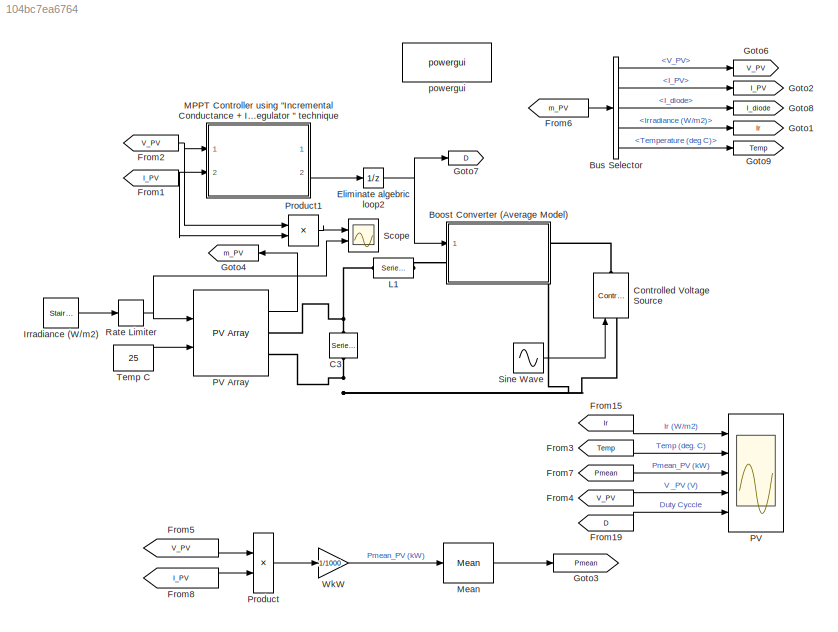
MODEL slx_104bc7ea6764
KIND model
CONFIG AbsTol = auto
CONFIG EnableMultiTasking = off
CONFIG FixedStep = auto
CONFIG MaxStep = 1e-4
CONFIG MinStep = auto
CONFIG PreLoadFcn = Ts_Power=50e-6;\nTs_Control=100e-6;\n\n\n
CONFIG RelTol = 1e-3
CONFIG SampleTimeConstraint = Unconstrained
CONFIG SolverName = ode23tb
CONFIG StartTime = 0.0
CONFIG StopTime = 4
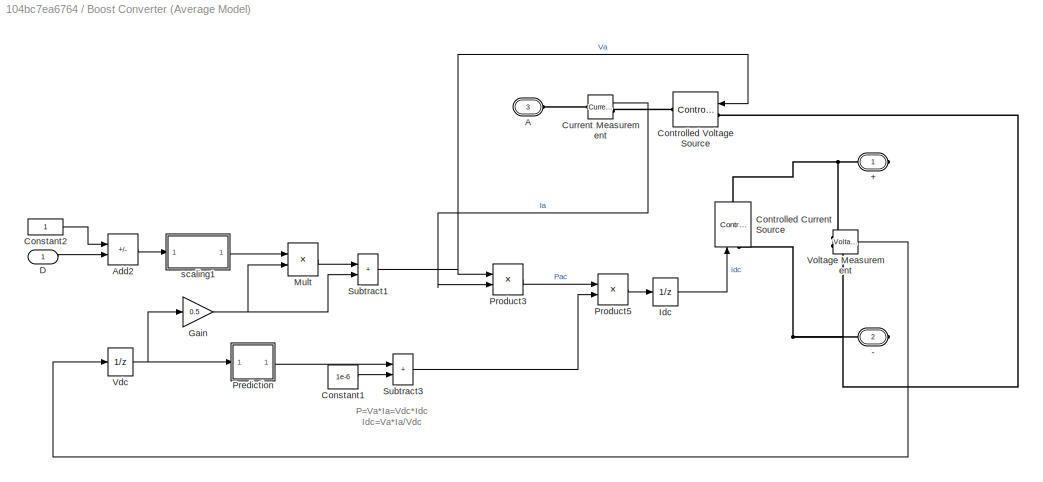
BLOCK [SubSystem] Boost Converter (Average Model)
  NameLocation = top
  Ports = [1, 0, 0, 0, 0, 1, 2]
  RequestExecContextInheritance = off
BLOCK [PMIOPort] Boost Converter (Average Model)/+
  Side = Right
  Tag = PMCPort
BLOCK [PMIOPort] Boost Converter (Average Model)/-
  Port = 2
  Side = Right
  Tag = PMCPort
BLOCK [PMIOPort] Boost Converter (Average Model)/A
  Port = 3
  Side = Left
  Tag = PMCPort
BLOCK [Sum] Boost Converter (Average Model)/Add2
  IconShape = rectangular
  Inputs = +-
  Ports = [2, 1]
BLOCK [Constant] Boost Converter (Average Model)/Constant1
  Value = 1e-6
BLOCK [Constant] Boost Converter (Average Model)/Constant2
BLOCK [Reference] Boost Converter (Average Model)/Controlled Current Source  REF=spsControlledCurrentSourceLib/Controlled Current Source
  NameLocation = right
  Ports = [1, 0, 0, 0, 0, 1, 1]
  SourceBlock = spsControlledCurrentSourceLib/Controlled Current Source
  SourceProductBaseCode = PS
  SourceType = Controlled Current Source
BLOCK [Reference] Boost Converter (Average Model)/Controlled Voltage Source  REF=spsControlledVoltageSourceLib/Controlled Voltage Source
  Ports = [1, 0, 0, 0, 0, 1, 1]
  SourceBlock = spsControlledVoltageSourceLib/Controlled Voltage Source
  SourceProductBaseCode = PS
  SourceType = Controlled Voltage Source
BLOCK [Reference] Boost Converter (Average Model)/Current Measurement  REF=spsCurrentMeasurementLib/Current Measurement
  Ports = [0, 1, 0, 0, 0, 1, 1]
  SourceBlock = spsCurrentMeasurementLib/Current Measurement
  SourceProductBaseCode = PS
  SourceType = Current Measurement
BLOCK [Inport] Boost Converter (Average Model)/D
BLOCK [Gain] Boost Converter (Average Model)/Gain
  Gain = 0.5
  NameLocation = top
BLOCK [UnitDelay] Boost Converter (Average Model)/Idc
  HasFrameUpgradeWarning = on
  SampleTime = Ts
BLOCK [Product] Boost Converter (Average Model)/Mult
  Inputs = **
  Ports = [2, 1]
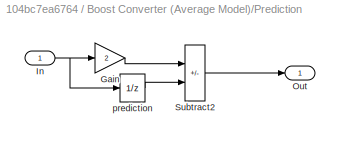
BLOCK [SubSystem] Boost Converter (Average Model)/Prediction
  Ports = [1, 1]
  RequestExecContextInheritance = off
BLOCK [Gain] Boost Converter (Average Model)/Prediction/Gain
  Gain = 2
BLOCK [Inport] Boost Converter (Average Model)/Prediction/In
BLOCK [Outport] Boost Converter (Average Model)/Prediction/Out
BLOCK [Sum] Boost Converter (Average Model)/Prediction/Subtract2
  IconShape = rectangular
  Inputs = +-
  Ports = [2, 1]
BLOCK [UnitDelay] Boost Converter (Average Model)/Prediction/prediction
  HasFrameUpgradeWarning = on
  SampleTime = Ts
BLOCK [Product] Boost Converter (Average Model)/Product3
  Ports = [2, 1]
  RndMeth = Zero
BLOCK [Product] Boost Converter (Average Model)/Product5
  Inputs = */
  Ports = [2, 1]
  RndMeth = Zero
BLOCK [Sum] Boost Converter (Average Model)/Subtract1
  IconShape = rectangular
  Ports = [2, 1]
BLOCK [Sum] Boost Converter (Average Model)/Subtract3
  IconShape = rectangular
  Ports = [2, 1]
BLOCK [UnitDelay] Boost Converter (Average Model)/Vdc
  HasFrameUpgradeWarning = on
  SampleTime = Ts
BLOCK [Reference] Boost Converter (Average Model)/Voltage Measurement  REF=spsVoltageMeasurementLib/Voltage Measurement
  Ports = [0, 1, 0, 0, 0, 2]
  SourceBlock = spsVoltageMeasurementLib/Voltage Measurement
  SourceProductBaseCode = PS
  SourceType = Voltage Measurement
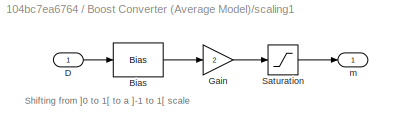
BLOCK [SubSystem] Boost Converter (Average Model)/scaling1
  NameLocation = top
  Ports = [1, 1]
  RequestExecContextInheritance = off
BLOCK [Bias] Boost Converter (Average Model)/scaling1/Bias
  Bias = -0.5
  SaturateOnIntegerOverflow = off
BLOCK [Inport] Boost Converter (Average Model)/scaling1/D
BLOCK [Gain] Boost Converter (Average Model)/scaling1/Gain
  Gain = 2
BLOCK [Saturate] Boost Converter (Average Model)/scaling1/Saturation
  LowerLimit = -1
  UpperLimit = 1
BLOCK [Outport] Boost Converter (Average Model)/scaling1/m
BLOCK [BusSelector] Bus Selector
  OutputSignals = V_PV,I_PV,I_diode,Irradiance (W/m2),Temperature (deg C)
  Ports = [1, 5]
BLOCK [Reference] C3  REF=spsSeriesRLCBranchLib/Series RLC Branch
  AttributesFormatString = \n
  NameLocation = left
  Ports = [0, 0, 0, 0, 0, 1, 1]
  SourceBlock = spsSeriesRLCBranchLib/Series RLC Branch
  SourceProductBaseCode = PS
  SourceType = Series RLC Branch
BLOCK [Reference] Controlled Voltage Source  REF=spsControlledVoltageSourceLib/Controlled Voltage Source
  NameLocation = right
  Ports = [1, 0, 0, 0, 0, 1, 1]
  SourceBlock = spsControlledVoltageSourceLib/Controlled Voltage Source
  SourceProductBaseCode = PS
  SourceType = Controlled Voltage Source
BLOCK [UnitDelay] Eliminate algebric loop2
  HasFrameUpgradeWarning = on
  NameLocation = top
  SampleTime = Ts_Control
BLOCK [From] From1
  CloseFcn = tagdialog Close
  GotoTag = I_PV
  TagVisibility = global
BLOCK [From] From15
  CloseFcn = tagdialog Close
  GotoTag = Ir
  TagVisibility = global
BLOCK [From] From19
  CloseFcn = tagdialog Close
  GotoTag = D
  TagVisibility = global
BLOCK [From] From2
  CloseFcn = tagdialog Close
  GotoTag = V_PV
  TagVisibility = global
BLOCK [From] From3
  CloseFcn = tagdialog Close
  GotoTag = Temp
  TagVisibility = global
BLOCK [From] From4
  CloseFcn = tagdialog Close
  GotoTag = V_PV
  TagVisibility = global
BLOCK [From] From5
  GotoTag = V_PV
  TagVisibility = global
BLOCK [From] From6
  GotoTag = m_PV
  TagVisibility = global
BLOCK [From] From7
  CloseFcn = tagdialog Close
  GotoTag = Pmean
  TagVisibility = global
BLOCK [From] From8
  GotoTag = I_PV
  TagVisibility = global
BLOCK [Goto] Goto1
  GotoTag = Ir
  TagVisibility = global
BLOCK [Goto] Goto2
  GotoTag = I_PV
  TagVisibility = global
BLOCK [Goto] Goto3
  GotoTag = Pmean
  TagVisibility = global
BLOCK [Goto] Goto4
  GotoTag = m_PV
  TagVisibility = global
BLOCK [Goto] Goto6
  GotoTag = V_PV
  TagVisibility = global
BLOCK [Goto] Goto7
  GotoTag = D
  TagVisibility = global
BLOCK [Goto] Goto8
  GotoTag = I_diode
  TagVisibility = global
BLOCK [Goto] Goto9
  GotoTag = Temp
  TagVisibility = global
BLOCK [Reference] Irradiance (W//m2)  REF=spsStairGeneratorLib/Stair
Generator
  NameLocation = top
  Ports = [0, 1]
  SourceBlock = spsStairGeneratorLib/Stair\nGenerator
  SourceProductBaseCode = PS
  SourceType = Stair Generator
BLOCK [Reference] L1  REF=spsSeriesRLCBranchLib/Series RLC Branch
  Ports = [0, 0, 0, 0, 0, 1, 1]
  SourceBlock = spsSeriesRLCBranchLib/Series RLC Branch
  SourceProductBaseCode = PS
  SourceType = Series RLC Branch
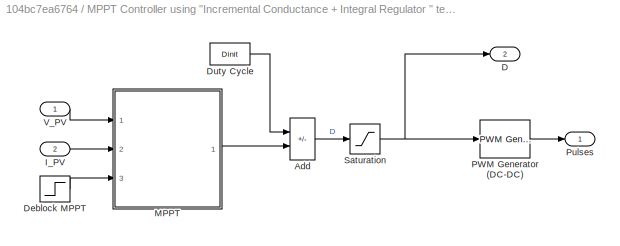
BLOCK [SubSystem] MPPT Controller using  "Incremental Conductance + Integral Regulator "  technique 
  NameLocation = top
  Ports = [2, 2]
  RequestExecContextInheritance = off
BLOCK [Sum] MPPT Controller using  "Incremental Conductance + Integral Regulator "  technique /Add
  IconShape = rectangular
  Inputs = +-
  Ports = [2, 1]
BLOCK [Outport] MPPT Controller using  "Incremental Conductance + Integral Regulator "  technique /D
  Port = 2
BLOCK [Step] MPPT Controller using  "Incremental Conductance + Integral Regulator "  technique /Deblock MPPT
  SampleTime = 0
  Time = 0.3
BLOCK [Constant] MPPT Controller using  "Incremental Conductance + Integral Regulator "  technique /Duty Cycle
  NameLocation = top
  Value = Dinit
BLOCK [Inport] MPPT Controller using  "Incremental Conductance + Integral Regulator "  technique /I_PV
  Port = 2
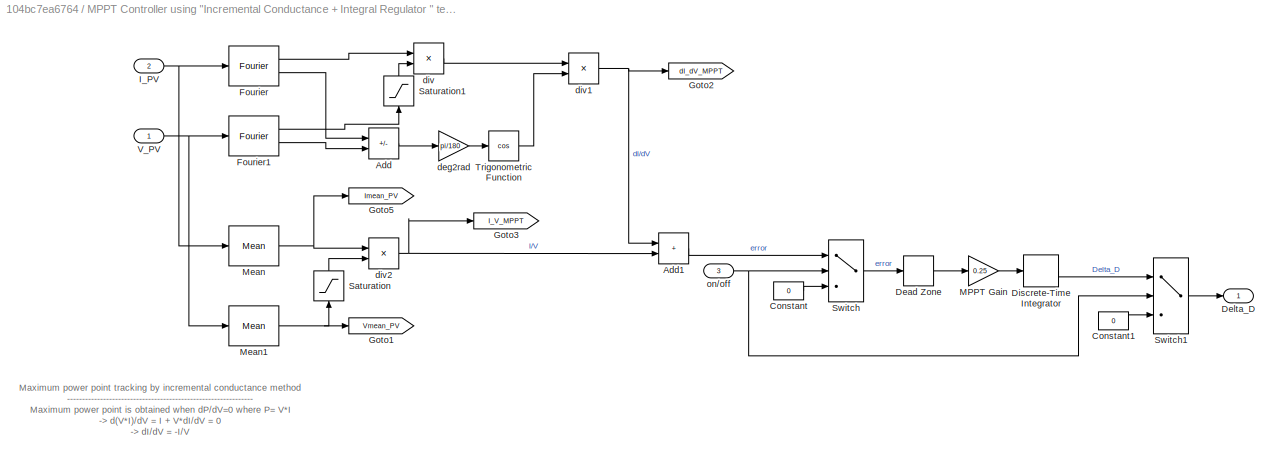
BLOCK [SubSystem] MPPT Controller using  "Incremental Conductance + Integral Regulator "  technique /MPPT
  Ports = [3, 1]
  RequestExecContextInheritance = off
BLOCK [Sum] MPPT Controller using  "Incremental Conductance + Integral Regulator "  technique /MPPT/Add
  IconShape = rectangular
  Inputs = +-
  Ports = [2, 1]
BLOCK [Sum] MPPT Controller using  "Incremental Conductance + Integral Regulator "  technique /MPPT/Add1
  IconShape = rectangular
  Ports = [2, 1]
BLOCK [Constant] MPPT Controller using  "Incremental Conductance + Integral Regulator "  technique /MPPT/Constant
  Value = 0
BLOCK [Constant] MPPT Controller using  "Incremental Conductance + Integral Regulator "  technique /MPPT/Constant1
  Value = 0
BLOCK [DeadZone] MPPT Controller using  "Incremental Conductance + Integral Regulator "  technique /MPPT/Dead Zone
  LowerValue = -0.01
  UpperValue = 0.01
BLOCK [Outport] MPPT Controller using  "Incremental Conductance + Integral Regulator "  technique /MPPT/Delta_D
BLOCK [DiscreteIntegrator] MPPT Controller using  "Incremental Conductance + Integral Regulator "  technique /MPPT/Discrete-Time Integrator
  ICPrevOutput = DiscIntNeverNeededParam
  ICPrevScaledInput = DiscIntNeverNeededParam
  IntegratorMethod = Integration: Backward Euler
  LimitOutput = on
  LowerSaturationLimit = -1
  Ports = [1, 1]
  SampleTime = Ts_Control
  UpperSaturationLimit = 1
BLOCK [Reference] MPPT Controller using  "Incremental Conductance + Integral Regulator "  technique /MPPT/Fourier  REF=spsFourierLib/Fourier
  Ports = [1, 2]
  SourceBlock = spsFourierLib/Fourier
  SourceProductBaseCode = PS
  SourceType = Fourier
BLOCK [Reference] MPPT Controller using  "Incremental Conductance + Integral Regulator "  technique /MPPT/Fourier1  REF=spsFourierLib/Fourier
  Ports = [1, 2]
  SourceBlock = spsFourierLib/Fourier
  SourceProductBaseCode = PS
  SourceType = Fourier
BLOCK [Goto] MPPT Controller using  "Incremental Conductance + Integral Regulator "  technique /MPPT/Goto1
  GotoTag = Vmean_PV
  TagVisibility = global
BLOCK [Goto] MPPT Controller using  "Incremental Conductance + Integral Regulator "  technique /MPPT/Goto2
  GotoTag = dI_dV_MPPT
  TagVisibility = global
BLOCK [Goto] MPPT Controller using  "Incremental Conductance + Integral Regulator "  technique /MPPT/Goto3
  GotoTag = I_V_MPPT
  TagVisibility = global
BLOCK [Goto] MPPT Controller using  "Incremental Conductance + Integral Regulator "  technique /MPPT/Goto5
  GotoTag = Imean_PV
  TagVisibility = global
BLOCK [Inport] MPPT Controller using  "Incremental Conductance + Integral Regulator "  technique /MPPT/I_PV
  Port = 2
BLOCK [Gain] MPPT Controller using  "Incremental Conductance + Integral Regulator "  technique /MPPT/MPPT Gain
  Gain = 0.25
BLOCK [Reference] MPPT Controller using  "Incremental Conductance + Integral Regulator "  technique /MPPT/Mean  REF=spsMeanLib/Mean
  Ports = [1, 1]
  SourceBlock = spsMeanLib/Mean
  SourceProductBaseCode = PS
  SourceType = Mean
BLOCK [Reference] MPPT Controller using  "Incremental Conductance + Integral Regulator "  technique /MPPT/Mean1  REF=spsMeanLib/Mean
  Ports = [1, 1]
  SourceBlock = spsMeanLib/Mean
  SourceProductBaseCode = PS
  SourceType = Mean
BLOCK [Saturate] MPPT Controller using  "Incremental Conductance + Integral Regulator "  technique /MPPT/Saturation
  LowerLimit = eps
  NameLocation = right
  UpperLimit = inf
BLOCK [Saturate] MPPT Controller using  "Incremental Conductance + Integral Regulator "  technique /MPPT/Saturation1
  LowerLimit = eps
  NameLocation = right
  UpperLimit = inf
BLOCK [Switch] MPPT Controller using  "Incremental Conductance + Integral Regulator "  technique /MPPT/Switch
  InputSameDT = off
  SaturateOnIntegerOverflow = off
  Threshold = 0.5
BLOCK [Switch] MPPT Controller using  "Incremental Conductance + Integral Regulator "  technique /MPPT/Switch1
  InputSameDT = off
  SaturateOnIntegerOverflow = off
  Threshold = 0.5
BLOCK [Trigonometry] MPPT Controller using  "Incremental Conductance + Integral Regulator "  technique /MPPT/Trigonometric Function
  Operator = cos
  Ports = [1, 1]
BLOCK [Inport] MPPT Controller using  "Incremental Conductance + Integral Regulator "  technique /MPPT/V_PV
BLOCK [Gain] MPPT Controller using  "Incremental Conductance + Integral Regulator "  technique /MPPT/deg2rad
  Gain = pi/180
BLOCK [Product] MPPT Controller using  "Incremental Conductance + Integral Regulator "  technique /MPPT/div
  Inputs = */
  Ports = [2, 1]
  RndMeth = Zero
BLOCK [Product] MPPT Controller using  "Incremental Conductance + Integral Regulator "  technique /MPPT/div1
  Inputs = **
  Ports = [2, 1]
  RndMeth = Zero
BLOCK [Product] MPPT Controller using  "Incremental Conductance + Integral Regulator "  technique /MPPT/div2
  Inputs = */
  Ports = [2, 1]
  RndMeth = Zero
BLOCK [Inport] MPPT Controller using  "Incremental Conductance + Integral Regulator "  technique /MPPT/on//off
  Port = 3
BLOCK [Reference] MPPT Controller using  "Incremental Conductance + Integral Regulator "  technique /PWM Generator (DC-DC)  REF=spsPWMGeneratorDCDCLib/PWM Generator
(DC-DC)
  Ports = [1, 1]
  SourceBlock = spsPWMGeneratorDCDCLib/PWM Generator\n(DC-DC)
  SourceProductBaseCode = PS
  SourceType = PWM Generator (DC-DC)
BLOCK [Outport] MPPT Controller using  "Incremental Conductance + Integral Regulator "  technique /Pulses
BLOCK [Saturate] MPPT Controller using  "Incremental Conductance + Integral Regulator "  technique /Saturation
  LowerLimit = 0.1
  UpperLimit = 0.9
BLOCK [Inport] MPPT Controller using  "Incremental Conductance + Integral Regulator "  technique /V_PV
BLOCK [Reference] Mean  REF=spsMeanLib/Mean
  Ports = [1, 1]
  SourceBlock = spsMeanLib/Mean
  SourceProductBaseCode = PS
  SourceType = Mean
BLOCK [Scope] PV
  Floating = off
  NumInputPorts = 5
  Ports = [5]
  ScopeSpecificationString = Simulink.scopes.TimeScopeBlockCfg('CurrentConfiguration', extmgr.ConfigurationSet(extmgr.Configuration('Core','General UI',true),extmgr.Configuration('Core','Source UI',true),extmgr.Configuration('Sources','WiredSimulink',true,'DataLoggingSaveFormat','Array','DataLoggingDecimation','1','DataLoggingDecimateData',true),extmgr.Configuration('Visuals','Time Domain',true,'SerializedDisplays',{struct('M...<+4426ch>
BLOCK [Reference] PV Array  REF=spsPVArrayLib/PV Array
  Ports = [2, 1, 0, 0, 0, 0, 2]
  SourceBlock = spsPVArrayLib/PV Array
  SourceProductBaseCode = PS
  SourceType = PV array
BLOCK [Product] Product
  Ports = [2, 1]
  RndMeth = Zero
BLOCK [Product] Product1
  Ports = [2, 1]
BLOCK [RateLimiter] Rate Limiter
  FallingSlewLimit = -6000
  InitialCondition = 1000
  NameLocation = top
  RisingSlewLimit = 6000
  SampleTimeMode = inherited
BLOCK [Scope] Scope
  Floating = off
  NumInputPorts = 2
  Ports = [2]
  ScopeSpecificationString = Simulink.scopes.TimeScopeBlockCfg('CurrentConfiguration', extmgr.ConfigurationSet(extmgr.Configuration('Core','General UI',true),extmgr.Configuration('Core','Source UI',true),extmgr.Configuration('Sources','WiredSimulink',true,'DataLoggingVariableName','ScopeData1'),extmgr.Configuration('Visuals','Time Domain',true,'SerializedDisplays',{struct('MinYLimReal','-1161.01846','MaxYLimReal','3278.85095'...<+2092ch>
BLOCK [Sin] Sine Wave
  Amplitude = 0.1
  Bias = 500
  Frequency = 2*pi
  Ports = [0, 1]
  SampleTime = 0
BLOCK [Constant] Temp C
  Commented = on
  Value = 25
BLOCK [Gain] WkW
  Gain = 1/1000
BLOCK [Reference] powergui  REF=spspowerguiLib/powergui
  Ports = []
  Priority = 1
  SourceBlock = spspowerguiLib/powergui
  SourceProductBaseCode = PS
  SourceType = PSB option menu block
ANNOTATION Boost Converter (Average Model): P=Va*Ia=Vdc*Idc Idc=Va*Ia/Vdc
ANNOTATION Boost Converter (Average Model)/scaling1: Shifting from ]0 to 1[ to a ]-1 to 1[ scale
ANNOTATION MPPT Controller using  "Incremental Conductance + Integral Regulator "  technique /MPPT: Maximum power point tracking by incremental conductance method -------------------------------------------------------------- Maximum power point is obtained when dP/dV=0 where P= V*I -> d(V*I)/dV = I + V*dI/dV = 0 -> dI/dV = -I/V dI, dV = fundamental components of I and V ripples measured with a sliding time window T_MPPT I , V = mean values of V and I measured with a sliding time window T_MPPT T...<+96ch>
LINE Boost Converter (Average Model)/Add2:1 -> Boost Converter (Average Model)/scaling1:1
LINE Boost Converter (Average Model)/Constant1:1 -> Boost Converter (Average Model)/Subtract3:2
LINE Boost Converter (Average Model)/Constant2:1 -> Boost Converter (Average Model)/Add2:1
LINE Boost Converter (Average Model)/Current Measurement:1 -> Boost Converter (Average Model)/Product3:2
LINE Boost Converter (Average Model)/D:1 -> Boost Converter (Average Model)/Add2:2
NET Boost Converter (Average Model)/Gain:1 -> Boost Converter (Average Model)/Mult:2, Boost Converter (Average Model)/Subtract1:2
LINE Boost Converter (Average Model)/Idc:1 -> Boost Converter (Average Model)/Controlled Current Source:1
LINE Boost Converter (Average Model)/Mult:1 -> Boost Converter (Average Model)/Subtract1:1
LINE Boost Converter (Average Model)/Prediction/Gain:1 -> Boost Converter (Average Model)/Prediction/Subtract2:1
NET Boost Converter (Average Model)/Prediction/In:1 -> Boost Converter (Average Model)/Prediction/Gain:1, Boost Converter (Average Model)/Prediction/prediction:1
LINE Boost Converter (Average Model)/Prediction/Subtract2:1 -> Boost Converter (Average Model)/Prediction/Out:1
LINE Boost Converter (Average Model)/Prediction/prediction:1 -> Boost Converter (Average Model)/Prediction/Subtract2:2
LINE Boost Converter (Average Model)/Prediction:1 -> Boost Converter (Average Model)/Subtract3:1
LINE Boost Converter (Average Model)/Product3:1 -> Boost Converter (Average Model)/Product5:1
LINE Boost Converter (Average Model)/Product5:1 -> Boost Converter (Average Model)/Idc:1
NET Boost Converter (Average Model)/Subtract1:1 -> Boost Converter (Average Model)/Controlled Voltage Source:1, Boost Converter (Average Model)/Product3:1
LINE Boost Converter (Average Model)/Subtract3:1 -> Boost Converter (Average Model)/Product5:2
NET Boost Converter (Average Model)/Vdc:1 -> Boost Converter (Average Model)/Gain:1, Boost Converter (Average Model)/Prediction:1
LINE Boost Converter (Average Model)/Voltage Measurement:1 -> Boost Converter (Average Model)/Vdc:1
LINE Boost Converter (Average Model)/scaling1/Bias:1 -> Boost Converter (Average Model)/scaling1/Gain:1
LINE Boost Converter (Average Model)/scaling1/D:1 -> Boost Converter (Average Model)/scaling1/Bias:1
LINE Boost Converter (Average Model)/scaling1/Gain:1 -> Boost Converter (Average Model)/scaling1/Saturation:1
LINE Boost Converter (Average Model)/scaling1/Saturation:1 -> Boost Converter (Average Model)/scaling1/m:1
LINE Boost Converter (Average Model)/scaling1:1 -> Boost Converter (Average Model)/Mult:1
LINE Bus Selector:1 -> Goto6:1
LINE Bus Selector:2 -> Goto2:1
LINE Bus Selector:3 -> Goto8:1
LINE Bus Selector:4 -> Goto1:1
LINE Bus Selector:5 -> Goto9:1
NET Eliminate algebric loop2:1 -> Boost Converter (Average Model):1, Goto7:1
LINE From15:1 -> PV:1
LINE From19:1 -> PV:5
NET From1:1 -> MPPT Controller using  "Incremental Conductance + Integral Regulator "  technique :2, Product1:2
NET From2:1 -> MPPT Controller using  "Incremental Conductance + Integral Regulator "  technique :1, Product1:1
LINE From3:1 -> PV:2
LINE From4:1 -> PV:4
LINE From5:1 -> Product:1
LINE From6:1 -> Bus Selector:1
LINE From7:1 -> PV:3
LINE From8:1 -> Product:2
LINE Irradiance (W//m2):1 -> Rate Limiter:1
LINE MPPT Controller using  "Incremental Conductance + Integral Regulator "  technique /Add:1 -> MPPT Controller using  "Incremental Conductance + Integral Regulator "  technique /Saturation:1
LINE MPPT Controller using  "Incremental Conductance + Integral Regulator "  technique /Deblock MPPT:1 -> MPPT Controller using  "Incremental Conductance + Integral Regulator "  technique /MPPT:3
LINE MPPT Controller using  "Incremental Conductance + Integral Regulator "  technique /Duty Cycle:1 -> MPPT Controller using  "Incremental Conductance + Integral Regulator "  technique /Add:1
LINE MPPT Controller using  "Incremental Conductance + Integral Regulator "  technique /I_PV:1 -> MPPT Controller using  "Incremental Conductance + Integral Regulator "  technique /MPPT:2
LINE MPPT Controller using  "Incremental Conductance + Integral Regulator "  technique /MPPT/Add1:1 -> MPPT Controller using  "Incremental Conductance + Integral Regulator "  technique /MPPT/Switch:1
LINE MPPT Controller using  "Incremental Conductance + Integral Regulator "  technique /MPPT/Add:1 -> MPPT Controller using  "Incremental Conductance + Integral Regulator "  technique /MPPT/deg2rad:1
LINE MPPT Controller using  "Incremental Conductance + Integral Regulator "  technique /MPPT/Constant1:1 -> MPPT Controller using  "Incremental Conductance + Integral Regulator "  technique /MPPT/Switch1:3
LINE MPPT Controller using  "Incremental Conductance + Integral Regulator "  technique /MPPT/Constant:1 -> MPPT Controller using  "Incremental Conductance + Integral Regulator "  technique /MPPT/Switch:3
LINE MPPT Controller using  "Incremental Conductance + Integral Regulator "  technique /MPPT/Dead Zone:1 -> MPPT Controller using  "Incremental Conductance + Integral Regulator "  technique /MPPT/MPPT Gain:1
LINE MPPT Controller using  "Incremental Conductance + Integral Regulator "  technique /MPPT/Discrete-Time Integrator:1 -> MPPT Controller using  "Incremental Conductance + Integral Regulator "  technique /MPPT/Switch1:1
LINE MPPT Controller using  "Incremental Conductance + Integral Regulator "  technique /MPPT/Fourier1:1 -> MPPT Controller using  "Incremental Conductance + Integral Regulator "  technique /MPPT/Saturation1:1
LINE MPPT Controller using  "Incremental Conductance + Integral Regulator "  technique /MPPT/Fourier1:2 -> MPPT Controller using  "Incremental Conductance + Integral Regulator "  technique /MPPT/Add:2
LINE MPPT Controller using  "Incremental Conductance + Integral Regulator "  technique /MPPT/Fourier:1 -> MPPT Controller using  "Incremental Conductance + Integral Regulator "  technique /MPPT/div:1
LINE MPPT Controller using  "Incremental Conductance + Integral Regulator "  technique /MPPT/Fourier:2 -> MPPT Controller using  "Incremental Conductance + Integral Regulator "  technique /MPPT/Add:1
NET MPPT Controller using  "Incremental Conductance + Integral Regulator "  technique /MPPT/I_PV:1 -> MPPT Controller using  "Incremental Conductance + Integral Regulator "  technique /MPPT/Fourier:1, MPPT Controller using  "Incremental Conductance + Integral Regulator "  technique /MPPT/Mean:1
LINE MPPT Controller using  "Incremental Conductance + Integral Regulator "  technique /MPPT/MPPT Gain:1 -> MPPT Controller using  "Incremental Conductance + Integral Regulator "  technique /MPPT/Discrete-Time Integrator:1
NET MPPT Controller using  "Incremental Conductance + Integral Regulator "  technique /MPPT/Mean1:1 -> MPPT Controller using  "Incremental Conductance + Integral Regulator "  technique /MPPT/Goto1:1, MPPT Controller using  "Incremental Conductance + Integral Regulator "  technique /MPPT/Saturation:1
NET MPPT Controller using  "Incremental Conductance + Integral Regulator "  technique /MPPT/Mean:1 -> MPPT Controller using  "Incremental Conductance + Integral Regulator "  technique /MPPT/Goto5:1, MPPT Controller using  "Incremental Conductance + Integral Regulator "  technique /MPPT/div2:1
LINE MPPT Controller using  "Incremental Conductance + Integral Regulator "  technique /MPPT/Saturation1:1 -> MPPT Controller using  "Incremental Conductance + Integral Regulator "  technique /MPPT/div:2
LINE MPPT Controller using  "Incremental Conductance + Integral Regulator "  technique /MPPT/Saturation:1 -> MPPT Controller using  "Incremental Conductance + Integral Regulator "  technique /MPPT/div2:2
LINE MPPT Controller using  "Incremental Conductance + Integral Regulator "  technique /MPPT/Switch1:1 -> MPPT Controller using  "Incremental Conductance + Integral Regulator "  technique /MPPT/Delta_D:1
LINE MPPT Controller using  "Incremental Conductance + Integral Regulator "  technique /MPPT/Switch:1 -> MPPT Controller using  "Incremental Conductance + Integral Regulator "  technique /MPPT/Dead Zone:1
LINE MPPT Controller using  "Incremental Conductance + Integral Regulator "  technique /MPPT/Trigonometric Function:1 -> MPPT Controller using  "Incremental Conductance + Integral Regulator "  technique /MPPT/div1:2
NET MPPT Controller using  "Incremental Conductance + Integral Regulator "  technique /MPPT/V_PV:1 -> MPPT Controller using  "Incremental Conductance + Integral Regulator "  technique /MPPT/Fourier1:1, MPPT Controller using  "Incremental Conductance + Integral Regulator "  technique /MPPT/Mean1:1
LINE MPPT Controller using  "Incremental Conductance + Integral Regulator "  technique /MPPT/deg2rad:1 -> MPPT Controller using  "Incremental Conductance + Integral Regulator "  technique /MPPT/Trigonometric Function:1
NET MPPT Controller using  "Incremental Conductance + Integral Regulator "  technique /MPPT/div1:1 -> MPPT Controller using  "Incremental Conductance + Integral Regulator "  technique /MPPT/Add1:1, MPPT Controller using  "Incremental Conductance + Integral Regulator "  technique /MPPT/Goto2:1
NET MPPT Controller using  "Incremental Conductance + Integral Regulator "  technique /MPPT/div2:1 -> MPPT Controller using  "Incremental Conductance + Integral Regulator "  technique /MPPT/Add1:2, MPPT Controller using  "Incremental Conductance + Integral Regulator "  technique /MPPT/Goto3:1
LINE MPPT Controller using  "Incremental Conductance + Integral Regulator "  technique /MPPT/div:1 -> MPPT Controller using  "Incremental Conductance + Integral Regulator "  technique /MPPT/div1:1
NET MPPT Controller using  "Incremental Conductance + Integral Regulator "  technique /MPPT/on//off:1 -> MPPT Controller using  "Incremental Conductance + Integral Regulator "  technique /MPPT/Switch1:2, MPPT Controller using  "Incremental Conductance + Integral Regulator "  technique /MPPT/Switch:2
LINE MPPT Controller using  "Incremental Conductance + Integral Regulator "  technique /MPPT:1 -> MPPT Controller using  "Incremental Conductance + Integral Regulator "  technique /Add:2
LINE MPPT Controller using  "Incremental Conductance + Integral Regulator "  technique /PWM Generator (DC-DC):1 -> MPPT Controller using  "Incremental Conductance + Integral Regulator "  technique /Pulses:1
NET MPPT Controller using  "Incremental Conductance + Integral Regulator "  technique /Saturation:1 -> MPPT Controller using  "Incremental Conductance + Integral Regulator "  technique /D:1, MPPT Controller using  "Incremental Conductance + Integral Regulator "  technique /PWM Generator (DC-DC):1
LINE MPPT Controller using  "Incremental Conductance + Integral Regulator "  technique /V_PV:1 -> MPPT Controller using  "Incremental Conductance + Integral Regulator "  technique /MPPT:1
LINE MPPT Controller using  "Incremental Conductance + Integral Regulator "  technique :2 -> Eliminate algebric loop2:1
LINE Mean:1 -> Goto3:1
LINE PV Array:1 -> Goto4:1
LINE Product1:1 -> Scope:1
LINE Product:1 -> WkW:1
NET Rate Limiter:1 -> PV Array:1, Scope:2
LINE Sine Wave:1 -> Controlled Voltage Source:1
LINE Temp C:1 -> PV Array:2
LINE WkW:1 -> Mean:1
PNET net1: Boost Converter (Average Model)/+:RConn1 -- Boost Converter (Average Model)/Controlled Current Source:RConn1 -- Boost Converter (Average Model)/Voltage Measurement:LConn1
PNET net2: Boost Converter (Average Model)/-:RConn1 -- Boost Converter (Average Model)/Controlled Current Source:LConn1 -- Boost Converter (Average Model)/Controlled Voltage Source:LConn1 -- Boost Converter (Average Model)/Voltage Measurement:LConn2
PLINE Boost Converter (Average Model)/A:RConn1 -- Boost Converter (Average Model)/Current Measurement:LConn1
PLINE Boost Converter (Average Model)/Controlled Voltage Source:RConn1 -- Boost Converter (Average Model)/Current Measurement:RConn1
PLINE Boost Converter (Average Model):LConn1 -- L1:RConn1
PLINE Boost Converter (Average Model):RConn1 -- Controlled Voltage Source:RConn1
PNET net3: Boost Converter (Average Model):RConn2 -- C3:RConn1 -- Controlled Voltage Source:LConn1 -- PV Array:RConn2
PNET net4: C3:LConn1 -- L1:LConn1 -- PV Array:RConn1
note: NET lines group one-source signal fan-out (src -> all destinations, sorted); 1:1 wires keep LINE; PNET lines group multi-terminal physical nets as a canonical sorted terminal list (undirected conserving connections); 2-terminal nets keep the pairwise PLINE form
